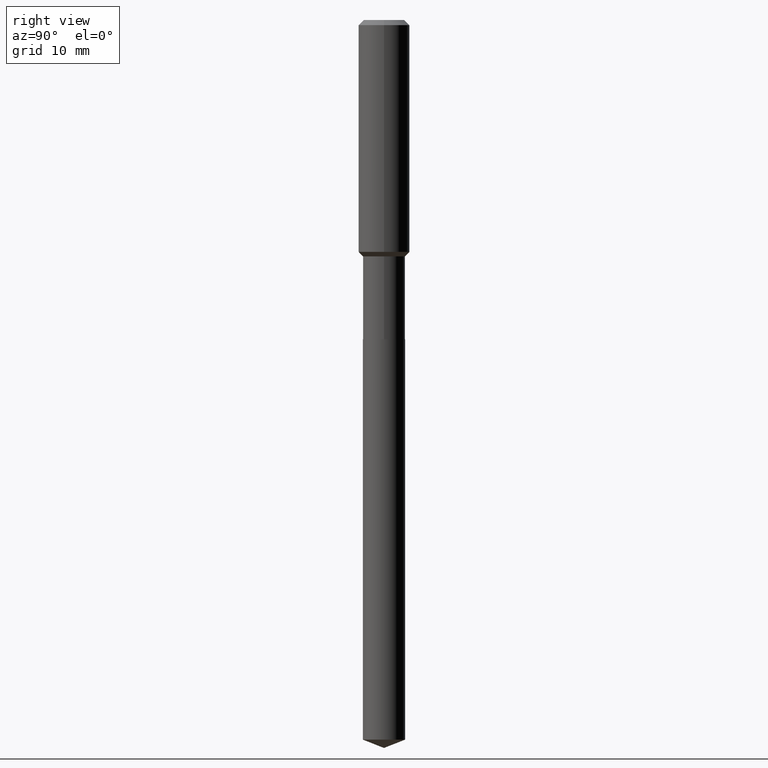
[diagram: clean part render]
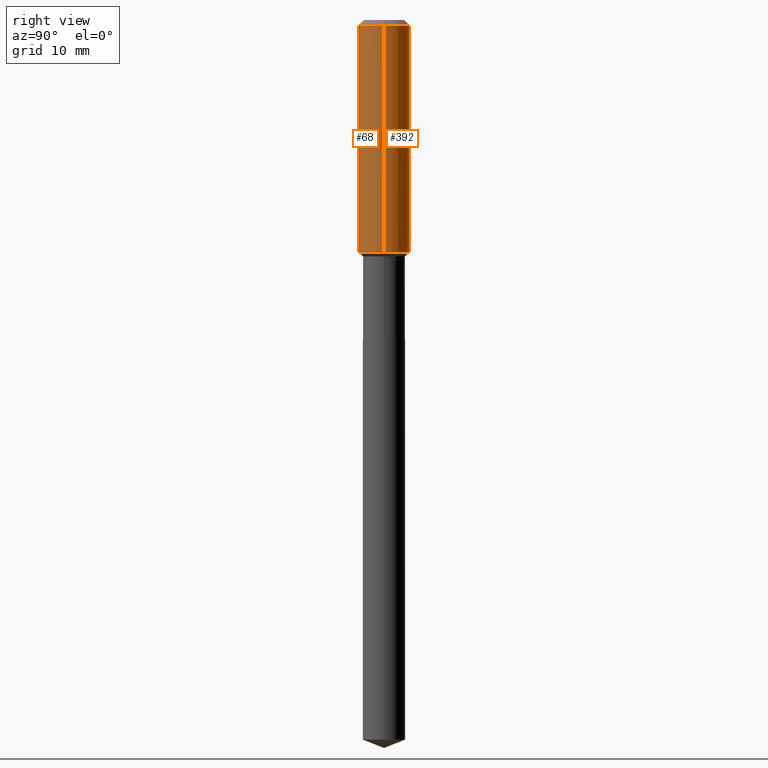
[diagram: same view with one multi-face feature highlighted, each face labeled with its STEP entity id]
A machine part, right view. The highlighted faces form ONE feature: a constant-radius fillet chain: 2 tangent blend faces with common blend radius 4.0005 mm. The faces share edges in the B-rep.
Their STEP definitions:
[1] entity #392 (Cylinder):
#4 = CARTESIAN_POINT ( 'NONE',  ( 0.1575000000000001676, -6.090889195611863399E-15, -1.429499999999999771 ) ) ;
#15 = ORIENTED_EDGE ( 'NONE', *, *, #231, .F. ) ;
#32 = VERTEX_POINT ( 'NONE', #105 ) ;
#42 = LINE ( 'NONE', #81, #408 ) ;
#45 = LINE ( 'NONE', #202, #189 ) ;
#81 = CARTESIAN_POINT ( 'NONE',  ( 0.1575000000000000844, -1.099816621735587677E-15, 7.679978421878603638E-30 ) ) ;
#88 = DIRECTION ( 'NONE',  ( -2.445468806185136597E-29, 3.491481338843145583E-15, 1.000000000000000000 ) ) ;
#105 = CARTESIAN_POINT ( 'NONE',  ( 0.1575000000000000011, -1.209798283909146741E-15, -0.03150000000000019451 ) ) ;
#106 = EDGE_CURVE ( 'NONE', #245, #370, #188, .T. ) ;
#112 = DIRECTION ( 'NONE',  ( 1.000000000000000000, -6.982962677686267499E-15, 4.876176775795936353E-29 ) ) ;
#132 = ORIENTED_EDGE ( 'NONE', *, *, #227, .F. ) ;
#134 = EDGE_LOOP ( 'NONE', ( #483, #302, #132, #15 ) ) ;
#149 = FACE_OUTER_BOUND ( 'NONE', #134, .T. ) ;
#164 = AXIS2_PLACEMENT_3D ( 'NONE', #295, #221, #439 ) ;
#185 = AXIS2_PLACEMENT_3D ( 'NONE', #334, #299, #112 ) ;
#188 = CIRCLE ( 'NONE', #164, 0.1575000000000001676 ) ;
#189 = VECTOR ( 'NONE', #205, 39.37007874015748143 ) ;
#198 = DIRECTION ( 'NONE',  ( -2.445468806185136877E-29, 3.491481338843145188E-15, 1.000000000000000000 ) ) ;
#202 = CARTESIAN_POINT ( 'NONE',  ( -0.1575000000000000844, 1.119104808822158392E-15, -7.747322767151481189E-30 ) ) ;
#205 = DIRECTION ( 'NONE',  ( -2.445468806185136877E-29, 3.491481338843145188E-15, 1.000000000000000000 ) ) ;
#217 = CARTESIAN_POINT ( 'NONE',  ( -0.1575000000000001676, -3.871967765054116737E-15, -1.429499999999999771 ) ) ;
#221 = DIRECTION ( 'NONE',  ( -2.445468806185136597E-29, 3.491481338843145583E-15, 1.000000000000000000 ) ) ;
#227 = EDGE_CURVE ( 'NONE', #32, #386, #288, .T. ) ;
#229 = CYLINDRICAL_SURFACE ( 'NONE', #185, 0.1575000000000000844 ) ;
#231 = EDGE_CURVE ( 'NONE', #245, #32, #42, .T. ) ;
#245 = VERTEX_POINT ( 'NONE', #4 ) ;
#250 = EDGE_CURVE ( 'NONE', #370, #386, #45, .T. ) ;
#261 = CARTESIAN_POINT ( 'NONE',  ( -0.1575000000000000011, -1.431422309202759493E-15, -0.03150000000000019451 ) ) ;
#277 = AXIS2_PLACEMENT_3D ( 'NONE', #406, #88, #304 ) ;
#288 = CIRCLE ( 'NONE', #277, 0.1575000000000000011 ) ;
#295 = CARTESIAN_POINT ( 'NONE',  ( 3.495797658441652397E-29, -4.991072573876276707E-15, -1.429499999999999771 ) ) ;
#299 = DIRECTION ( 'NONE',  ( -2.445468806185136597E-29, 3.491481338843145583E-15, 1.000000000000000000 ) ) ;
#302 = ORIENTED_EDGE ( 'NONE', *, *, #250, .T. ) ;
#304 = DIRECTION ( 'NONE',  ( 1.000000000000000000, -6.982962677686265922E-15, 0.000000000000000000 ) ) ;
#334 = CARTESIAN_POINT ( 'NONE',  ( 0.000000000000000000, 0.000000000000000000, 0.000000000000000000 ) ) ;
#370 = VERTEX_POINT ( 'NONE', #217 ) ;
#386 = VERTEX_POINT ( 'NONE', #261 ) ;
#392 = ADVANCED_FACE ( 'NONE', ( #149 ), #229, .T. ) ;
#406 = CARTESIAN_POINT ( 'NONE',  ( 7.703226739483228723E-31, -1.099816621735597661E-16, -0.03150000000000019451 ) ) ;
#408 = VECTOR ( 'NONE', #198, 39.37007874015748143 ) ;
#439 = DIRECTION ( 'NONE',  ( 1.000000000000000000, -6.982962677686267499E-15, 0.000000000000000000 ) ) ;
#483 = ORIENTED_EDGE ( 'NONE', *, *, #106, .T. ) ;
[2] entity #68 (Cylinder):
#4 = CARTESIAN_POINT ( 'NONE',  ( 0.1575000000000001676, -6.090889195611863399E-15, -1.429499999999999771 ) ) ;
#28 = FACE_OUTER_BOUND ( 'NONE', #57, .T. ) ;
#32 = VERTEX_POINT ( 'NONE', #105 ) ;
#42 = LINE ( 'NONE', #81, #408 ) ;
#44 = AXIS2_PLACEMENT_3D ( 'NONE', #435, #400, #77 ) ;
#45 = LINE ( 'NONE', #202, #189 ) ;
#49 = ORIENTED_EDGE ( 'NONE', *, *, #279, .F. ) ;
#57 = EDGE_LOOP ( 'NONE', ( #369, #94, #233, #49 ) ) ;
#68 = ADVANCED_FACE ( 'NONE', ( #28 ), #324, .T. ) ;
#77 = DIRECTION ( 'NONE',  ( 1.000000000000000000, -6.982962677686267499E-15, 0.000000000000000000 ) ) ;
#81 = CARTESIAN_POINT ( 'NONE',  ( 0.1575000000000000844, -1.099816621735587677E-15, 7.679978421878603638E-30 ) ) ;
#94 = ORIENTED_EDGE ( 'NONE', *, *, #109, .T. ) ;
#104 = DIRECTION ( 'NONE',  ( -2.445468806185136597E-29, 3.491481338843145583E-15, 1.000000000000000000 ) ) ;
#105 = CARTESIAN_POINT ( 'NONE',  ( 0.1575000000000000011, -1.209798283909146741E-15, -0.03150000000000019451 ) ) ;
#109 = EDGE_CURVE ( 'NONE', #370, #245, #243, .T. ) ;
#138 = CARTESIAN_POINT ( 'NONE',  ( 7.703226739483228723E-31, -1.099816621735597661E-16, -0.03150000000000019451 ) ) ;
#189 = VECTOR ( 'NONE', #205, 39.37007874015748143 ) ;
#198 = DIRECTION ( 'NONE',  ( -2.445468806185136877E-29, 3.491481338843145188E-15, 1.000000000000000000 ) ) ;
#202 = CARTESIAN_POINT ( 'NONE',  ( -0.1575000000000000844, 1.119104808822158392E-15, -7.747322767151481189E-30 ) ) ;
#205 = DIRECTION ( 'NONE',  ( -2.445468806185136877E-29, 3.491481338843145188E-15, 1.000000000000000000 ) ) ;
#217 = CARTESIAN_POINT ( 'NONE',  ( -0.1575000000000001676, -3.871967765054116737E-15, -1.429499999999999771 ) ) ;
#225 = DIRECTION ( 'NONE',  ( -2.445468806185136597E-29, 3.491481338843145583E-15, 1.000000000000000000 ) ) ;
#231 = EDGE_CURVE ( 'NONE', #245, #32, #42, .T. ) ;
#233 = ORIENTED_EDGE ( 'NONE', *, *, #231, .T. ) ;
#243 = CIRCLE ( 'NONE', #44, 0.1575000000000001676 ) ;
#245 = VERTEX_POINT ( 'NONE', #4 ) ;
#250 = EDGE_CURVE ( 'NONE', #370, #386, #45, .T. ) ;
#261 = CARTESIAN_POINT ( 'NONE',  ( -0.1575000000000000011, -1.431422309202759493E-15, -0.03150000000000019451 ) ) ;
#262 = AXIS2_PLACEMENT_3D ( 'NONE', #138, #104, #399 ) ;
#279 = EDGE_CURVE ( 'NONE', #386, #32, #327, .T. ) ;
#292 = CARTESIAN_POINT ( 'NONE',  ( 0.000000000000000000, 0.000000000000000000, 0.000000000000000000 ) ) ;
#324 = CYLINDRICAL_SURFACE ( 'NONE', #358, 0.1575000000000000844 ) ;
#327 = CIRCLE ( 'NONE', #262, 0.1575000000000000011 ) ;
#358 = AXIS2_PLACEMENT_3D ( 'NONE', #292, #225, #479 ) ;
#369 = ORIENTED_EDGE ( 'NONE', *, *, #250, .F. ) ;
#370 = VERTEX_POINT ( 'NONE', #217 ) ;
#386 = VERTEX_POINT ( 'NONE', #261 ) ;
#399 = DIRECTION ( 'NONE',  ( 1.000000000000000000, -6.982962677686265922E-15, 0.000000000000000000 ) ) ;
#400 = DIRECTION ( 'NONE',  ( -2.445468806185136597E-29, 3.491481338843145583E-15, 1.000000000000000000 ) ) ;
#408 = VECTOR ( 'NONE', #198, 39.37007874015748143 ) ;
#435 = CARTESIAN_POINT ( 'NONE',  ( 3.495797658441652397E-29, -4.991072573876276707E-15, -1.429499999999999771 ) ) ;
#479 = DIRECTION ( 'NONE',  ( 1.000000000000000000, -6.982962677686267499E-15, 4.876176775795936353E-29 ) ) ;